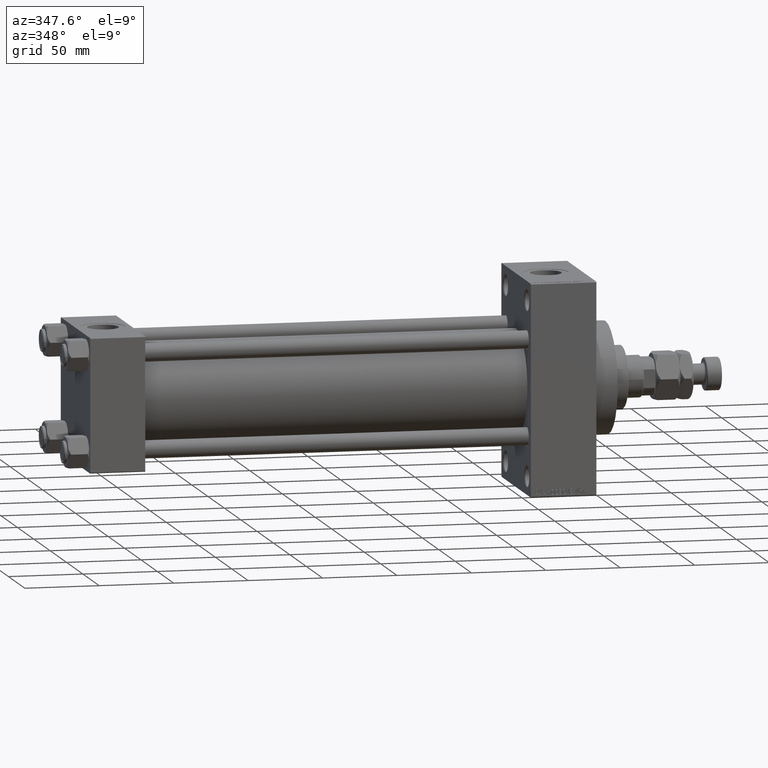
[diagram: clean part render]
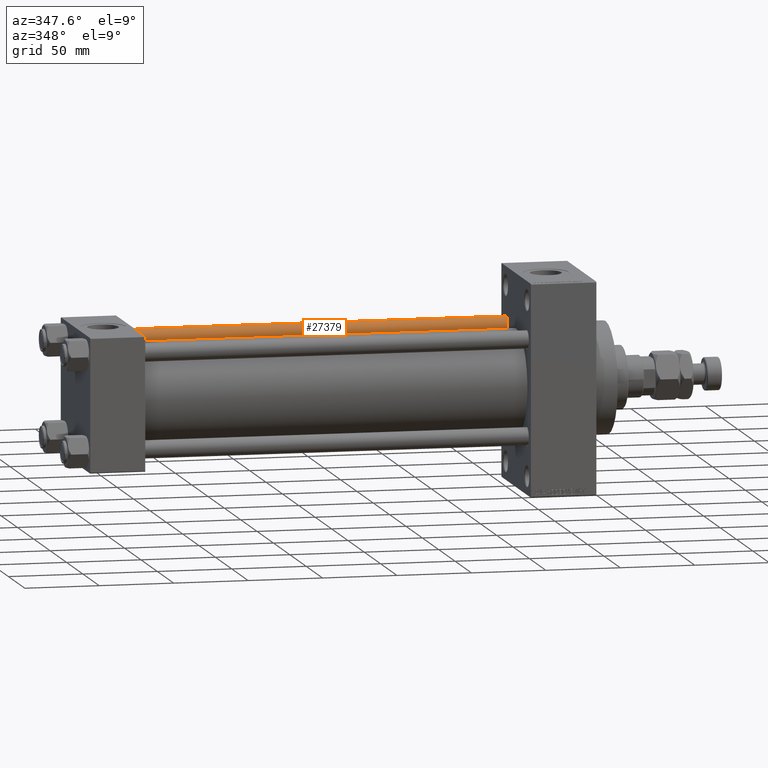
[diagram: same view with one face highlighted and labeled with its STEP entity id]
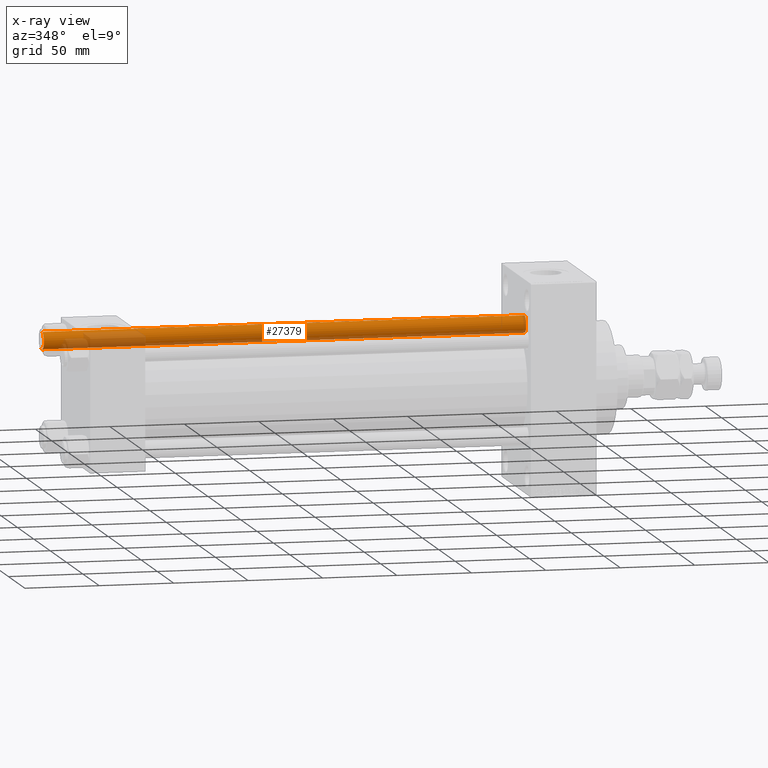
[diagram: x-ray of the same camera — body ghosted, the highlighted face saturated]
A machine part, auxiliary view. The second image highlights one B-rep face of the part: STEP entity #27379.
The next image is the same camera in x-ray: the body ghosted, the highlighted face saturated — about 25% of this face is hidden behind the body in this view.
In plain terms, the highlighted cylindrical surface (edge-blend (fillet) strip) has radius 6 mm, axis along (-1, -0, 0).
Its self-contained STEP definition (entity closure, byte-faithful):
#683 = EDGE_CURVE ( 'NONE', #6613, #21276, #1016, .T. ) ;
#1016 = CIRCLE ( 'NONE', #1833, 6.000000000000000888 ) ;
#1391 = VECTOR ( 'NONE', #10259, 1000.000000000000000 ) ;
#1833 = AXIS2_PLACEMENT_3D ( 'NONE', #11314, #19558, #27519 ) ;
#2703 = ORIENTED_EDGE ( 'NONE', *, *, #31247, .F. ) ;
#4383 = CARTESIAN_POINT ( 'NONE',  ( -6.000000000000000888, 0.000000000000000000, 324.5000000000001137 ) ) ;
#6551 = CARTESIAN_POINT ( 'NONE',  ( 6.000000000000000888, 7.347880794884120722E-16, 325.0000000000000000 ) ) ;
#6613 = VERTEX_POINT ( 'NONE', #8348 ) ;
#6972 = CIRCLE ( 'NONE', #48160, 6.000000000000000888 ) ;
#8348 = CARTESIAN_POINT ( 'NONE',  ( 6.000000000000000888, 7.347880794884120722E-16, 324.5000000000001137 ) ) ;
#9611 = FACE_OUTER_BOUND ( 'NONE', #34193, .T. ) ;
#10226 = ORIENTED_EDGE ( 'NONE', *, *, #39555, .T. ) ;
#10259 = DIRECTION ( 'NONE',  ( -0.000000000000000000, -0.000000000000000000, -1.000000000000000000 ) ) ;
#10290 = DIRECTION ( 'NONE',  ( -0.000000000000000000, -0.000000000000000000, 1.000000000000000000 ) ) ;
#10778 = CARTESIAN_POINT ( 'NONE',  ( -6.000000000000000888, 0.000000000000000000, 325.0000000000000000 ) ) ;
#10791 = AXIS2_PLACEMENT_3D ( 'NONE', #13741, #21466, #26337 ) ;
#11314 = CARTESIAN_POINT ( 'NONE',  ( 0.000000000000000000, 0.000000000000000000, 324.5000000000001137 ) ) ;
#13321 = EDGE_CURVE ( 'NONE', #21276, #15616, #45566, .T. ) ;
#13665 = CARTESIAN_POINT ( 'NONE',  ( 0.000000000000000000, 0.000000000000000000, 0.5000000000000004441 ) ) ;
#13741 = CARTESIAN_POINT ( 'NONE',  ( 0.000000000000000000, 0.000000000000000000, 325.0000000000000000 ) ) ;
#15616 = VERTEX_POINT ( 'NONE', #21186 ) ;
#18421 = LINE ( 'NONE', #6551, #19171 ) ;
#18904 = ORIENTED_EDGE ( 'NONE', *, *, #683, .T. ) ;
#19171 = VECTOR ( 'NONE', #34388, 1000.000000000000000 ) ;
#19558 = DIRECTION ( 'NONE',  ( 0.000000000000000000, 0.000000000000000000, -1.000000000000000000 ) ) ;
#21186 = CARTESIAN_POINT ( 'NONE',  ( -6.000000000000000888, 0.000000000000000000, 0.5000000000000004441 ) ) ;
#21276 = VERTEX_POINT ( 'NONE', #4383 ) ;
#21466 = DIRECTION ( 'NONE',  ( -0.000000000000000000, -0.000000000000000000, -1.000000000000000000 ) ) ;
#26337 = DIRECTION ( 'NONE',  ( -1.000000000000000000, 0.000000000000000000, 0.000000000000000000 ) ) ;
#27379 = ADVANCED_FACE ( 'NONE', ( #9611 ), #37177, .T. ) ;
#27519 = DIRECTION ( 'NONE',  ( 1.000000000000000000, 0.000000000000000000, 0.000000000000000000 ) ) ;
#31247 = EDGE_CURVE ( 'NONE', #6613, #42528, #18421, .T. ) ;
#34193 = EDGE_LOOP ( 'NONE', ( #2703, #18904, #48883, #10226 ) ) ;
#34388 = DIRECTION ( 'NONE',  ( -0.000000000000000000, -0.000000000000000000, -1.000000000000000000 ) ) ;
#37177 = CYLINDRICAL_SURFACE ( 'NONE', #10791, 6.000000000000000888 ) ;
#39555 = EDGE_CURVE ( 'NONE', #15616, #42528, #6972, .T. ) ;
#42528 = VERTEX_POINT ( 'NONE', #42531 ) ;
#42531 = CARTESIAN_POINT ( 'NONE',  ( 6.000000000000000888, 7.347880794884120722E-16, 0.5000000000000004441 ) ) ;
#45566 = LINE ( 'NONE', #10778, #1391 ) ;
#48160 = AXIS2_PLACEMENT_3D ( 'NONE', #13665, #10290, #49475 ) ;
#48883 = ORIENTED_EDGE ( 'NONE', *, *, #13321, .T. ) ;
#49475 = DIRECTION ( 'NONE',  ( 1.000000000000000000, 0.000000000000000000, 0.000000000000000000 ) ) ;